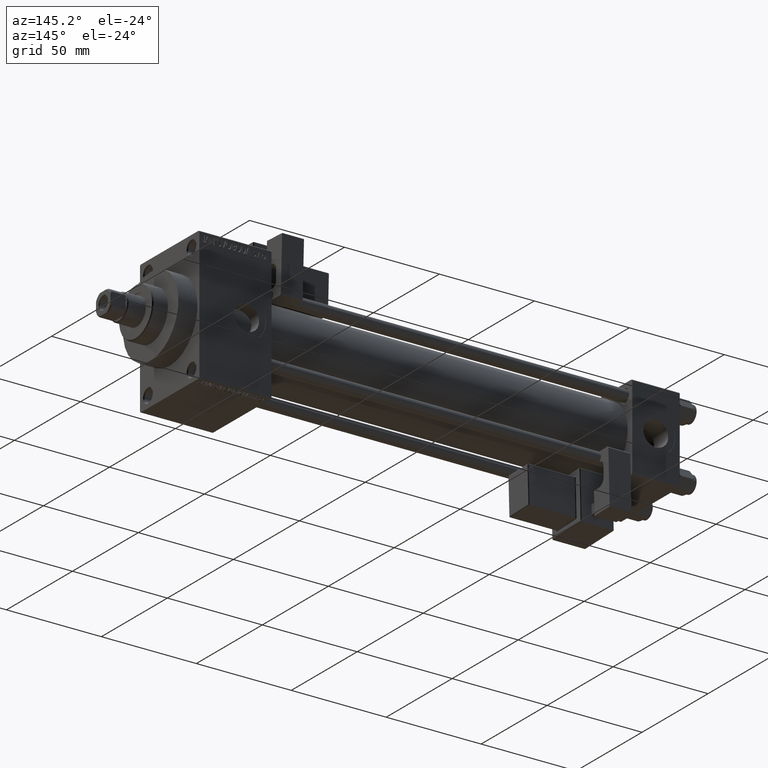
[diagram: clean part render]
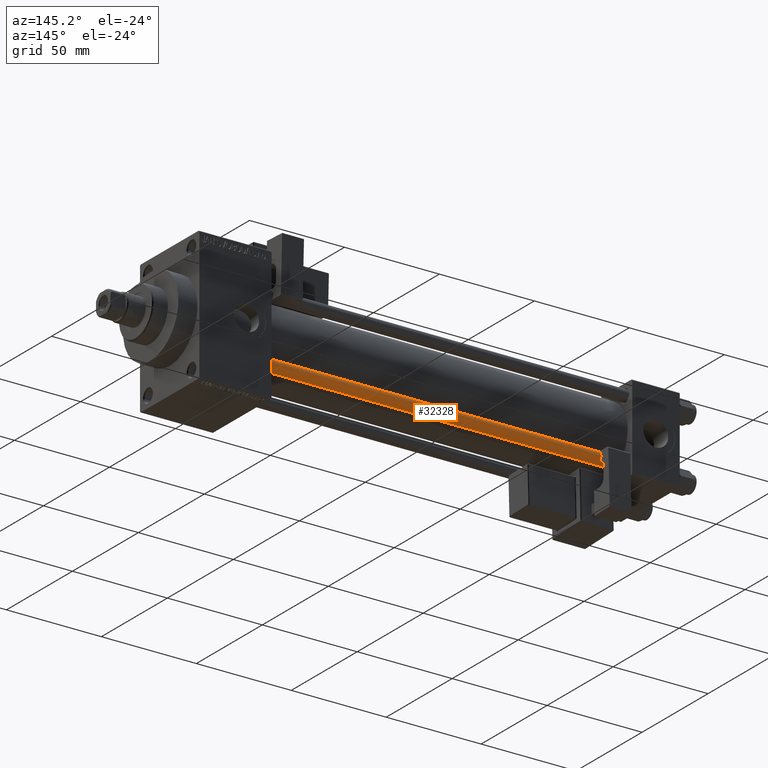
[diagram: same view with one face highlighted and labeled with its STEP entity id]
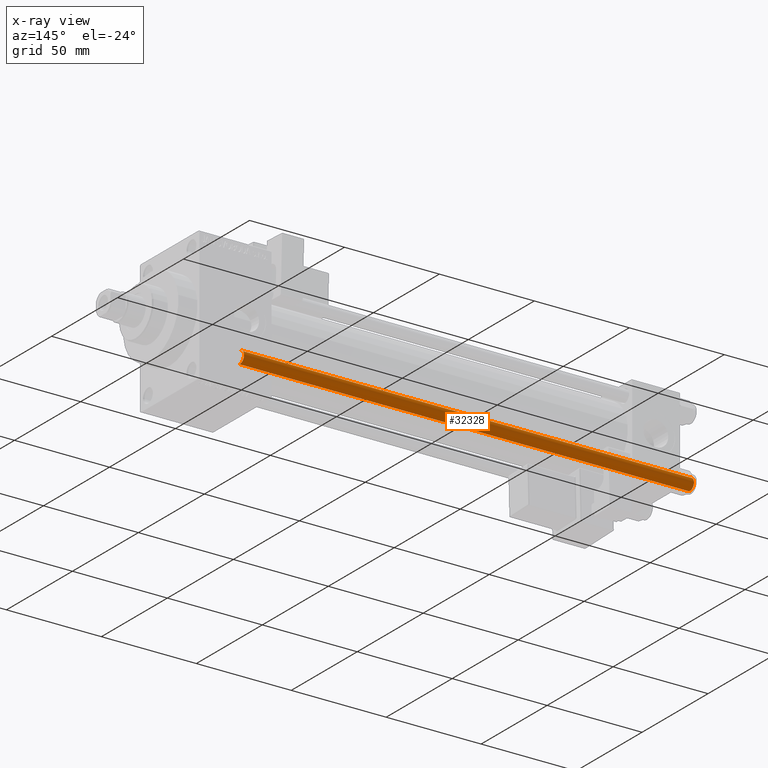
[diagram: x-ray of the same camera — body ghosted, the highlighted face saturated]
A machine part, auxiliary view. The second image highlights one B-rep face of the part: STEP entity #32328.
The next image is the same camera in x-ray: the body ghosted, the highlighted face saturated — about 0% of this face is hidden behind the body in this view.
In plain terms, the highlighted cylindrical surface (edge-blend (fillet) strip) has radius 3 mm, axis along (1, -0, 0).
Its self-contained STEP definition (entity closure, byte-faithful):
#246 = VERTEX_POINT ( 'NONE', #35835 ) ;
#4876 = EDGE_CURVE ( 'NONE', #246, #34430, #7650, .T. ) ;
#7650 = CIRCLE ( 'NONE', #50751, 3.000000000000000444 ) ;
#11349 = AXIS2_PLACEMENT_3D ( 'NONE', #15002, #26184, #30591 ) ;
#12045 = CARTESIAN_POINT ( 'NONE',  ( 3.000000000000000444, 3.673940397442060361E-16, 238.0000000000000000 ) ) ;
#13362 = VERTEX_POINT ( 'NONE', #24876 ) ;
#13872 = EDGE_CURVE ( 'NONE', #246, #13362, #42173, .T. ) ;
#13977 = FACE_OUTER_BOUND ( 'NONE', #28545, .T. ) ;
#14239 = CYLINDRICAL_SURFACE ( 'NONE', #11349, 3.000000000000000444 ) ;
#14515 = CARTESIAN_POINT ( 'NONE',  ( 3.000000000000000444, 3.673940397442060361E-16, 0.5000000000000281997 ) ) ;
#14650 = AXIS2_PLACEMENT_3D ( 'NONE', #25455, #32225, #40508 ) ;
#15002 = CARTESIAN_POINT ( 'NONE',  ( 0.000000000000000000, 0.000000000000000000, 238.0000000000000000 ) ) ;
#19478 = DIRECTION ( 'NONE',  ( 1.000000000000000000, 0.000000000000000000, 0.000000000000000000 ) ) ;
#22270 = ORIENTED_EDGE ( 'NONE', *, *, #32678, .T. ) ;
#23775 = CIRCLE ( 'NONE', #14650, 3.000000000000000444 ) ;
#24876 = CARTESIAN_POINT ( 'NONE',  ( -3.000000000000000444, 0.000000000000000000, 0.5000000000000281997 ) ) ;
#25455 = CARTESIAN_POINT ( 'NONE',  ( 0.000000000000000000, 0.000000000000000000, 0.5000000000000281997 ) ) ;
#26184 = DIRECTION ( 'NONE',  ( -0.000000000000000000, -0.000000000000000000, -1.000000000000000000 ) ) ;
#28020 = EDGE_CURVE ( 'NONE', #34430, #37473, #35675, .T. ) ;
#28545 = EDGE_LOOP ( 'NONE', ( #34791, #45492, #22270, #49041 ) ) ;
#30591 = DIRECTION ( 'NONE',  ( -1.000000000000000000, 0.000000000000000000, 0.000000000000000000 ) ) ;
#31171 = DIRECTION ( 'NONE',  ( 0.000000000000000000, 0.000000000000000000, -1.000000000000000000 ) ) ;
#31182 = VECTOR ( 'NONE', #31788, 1000.000000000000000 ) ;
#31788 = DIRECTION ( 'NONE',  ( -0.000000000000000000, -0.000000000000000000, -1.000000000000000000 ) ) ;
#32225 = DIRECTION ( 'NONE',  ( -0.000000000000000000, -0.000000000000000000, 1.000000000000000000 ) ) ;
#32328 = ADVANCED_FACE ( 'NONE', ( #13977 ), #14239, .T. ) ;
#32678 = EDGE_CURVE ( 'NONE', #37473, #13362, #23775, .T. ) ;
#33549 = VECTOR ( 'NONE', #34395, 1000.000000000000000 ) ;
#34140 = CARTESIAN_POINT ( 'NONE',  ( -3.000000000000000444, 0.000000000000000000, 238.0000000000000000 ) ) ;
#34395 = DIRECTION ( 'NONE',  ( -0.000000000000000000, -0.000000000000000000, -1.000000000000000000 ) ) ;
#34430 = VERTEX_POINT ( 'NONE', #37034 ) ;
#34791 = ORIENTED_EDGE ( 'NONE', *, *, #4876, .T. ) ;
#35675 = LINE ( 'NONE', #12045, #31182 ) ;
#35835 = CARTESIAN_POINT ( 'NONE',  ( -3.000000000000000444, 0.000000000000000000, 237.5000000000000284 ) ) ;
#37034 = CARTESIAN_POINT ( 'NONE',  ( 3.000000000000000444, 3.673940397442060361E-16, 237.5000000000000284 ) ) ;
#37473 = VERTEX_POINT ( 'NONE', #14515 ) ;
#40508 = DIRECTION ( 'NONE',  ( 1.000000000000000000, 0.000000000000000000, 0.000000000000000000 ) ) ;
#42173 = LINE ( 'NONE', #34140, #33549 ) ;
#45492 = ORIENTED_EDGE ( 'NONE', *, *, #28020, .T. ) ;
#47766 = CARTESIAN_POINT ( 'NONE',  ( 0.000000000000000000, 0.000000000000000000, 237.5000000000000284 ) ) ;
#49041 = ORIENTED_EDGE ( 'NONE', *, *, #13872, .F. ) ;
#50751 = AXIS2_PLACEMENT_3D ( 'NONE', #47766, #31171, #19478 ) ;